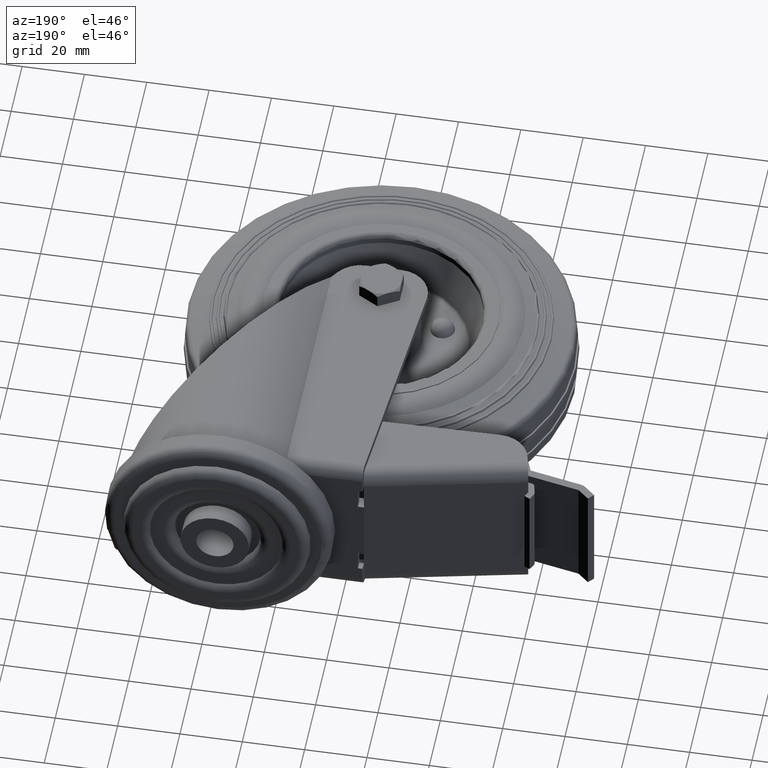
[diagram: clean part render]
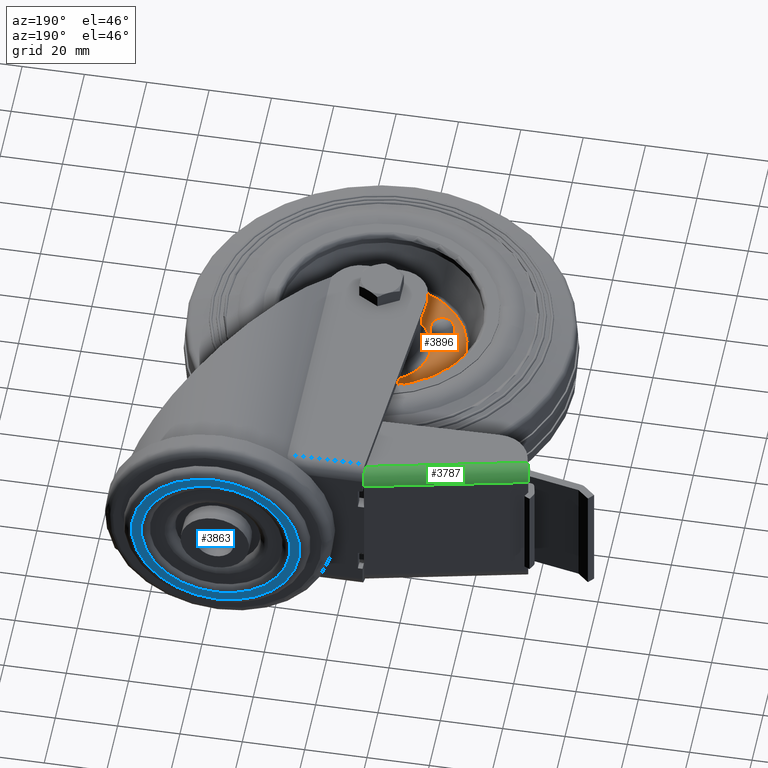
[diagram: same view with three faces highlighted in distinct colors, each labeled with its STEP entity id]
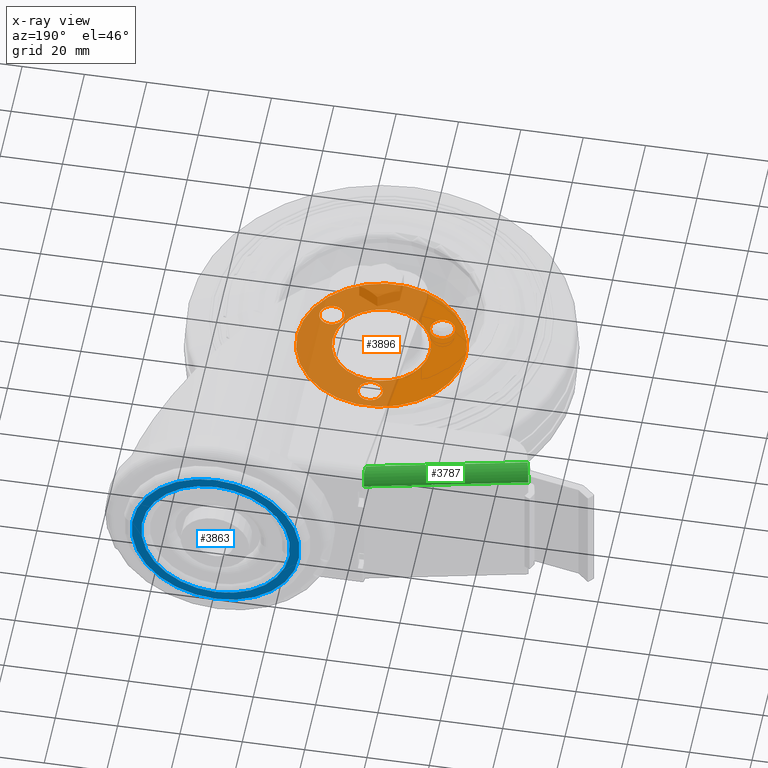
[diagram: x-ray of the same camera — body ghosted, the three highlighted faces saturated]
A machine part, auxiliary view with three faces highlighted in distinct colors.
The next image is the same camera in x-ray (body ghosted, the three faces saturated) — at least one of them is partly hidden behind the body in this view.
Their STEP definitions:

[orange] entity #3896 — the highlighted planar face has unit normal (0, 0, 1).
#379=FACE_BOUND('',#1009,.T.);
#380=FACE_BOUND('',#1010,.T.);
#381=FACE_BOUND('',#1011,.T.);
#382=FACE_BOUND('',#1012,.T.);
#497=CIRCLE('',#4441,27.0499809046163);
#498=CIRCLE('',#4442,3.97994974842648);
#499=CIRCLE('',#4443,3.97994974842648);
#500=CIRCLE('',#4444,3.97994974842648);
#501=CIRCLE('',#4445,15.7);
#761=FACE_OUTER_BOUND('',#1008,.T.);
#1008=EDGE_LOOP('',(#3360));
#1009=EDGE_LOOP('',(#3361));
#1010=EDGE_LOOP('',(#3362));
#1011=EDGE_LOOP('',(#3363));
#1012=EDGE_LOOP('',(#3364));
#1925=VERTEX_POINT('',#6758);
#1926=VERTEX_POINT('',#6760);
#1927=VERTEX_POINT('',#6762);
#1928=VERTEX_POINT('',#6764);
#1929=VERTEX_POINT('',#6766);
#2416=EDGE_CURVE('',#1925,#1925,#497,.T.);
#2417=EDGE_CURVE('',#1926,#1926,#498,.T.);
#2418=EDGE_CURVE('',#1927,#1927,#499,.T.);
#2419=EDGE_CURVE('',#1928,#1928,#500,.T.);
#2420=EDGE_CURVE('',#1929,#1929,#501,.T.);
#3360=ORIENTED_EDGE('',*,*,#2416,.T.);
#3361=ORIENTED_EDGE('',*,*,#2417,.F.);
#3362=ORIENTED_EDGE('',*,*,#2418,.F.);
#3363=ORIENTED_EDGE('',*,*,#2419,.F.);
#3364=ORIENTED_EDGE('',*,*,#2420,.F.);
#3719=PLANE('',#4440);
#3896=ADVANCED_FACE('',(#761,#379,#380,#381,#382),#3719,.T.);
#4440=AXIS2_PLACEMENT_3D('',#6757,#5430,#5431);
#4441=AXIS2_PLACEMENT_3D('',#6759,#5432,#5433);
#4442=AXIS2_PLACEMENT_3D('',#6761,#5434,#5435);
#4443=AXIS2_PLACEMENT_3D('',#6763,#5436,#5437);
#4444=AXIS2_PLACEMENT_3D('',#6765,#5438,#5439);
#4445=AXIS2_PLACEMENT_3D('',#6767,#5440,#5441);
#5430=DIRECTION('center_axis',(1.,0.,0.));
#5431=DIRECTION('ref_axis',(0.,0.,-1.));
#5432=DIRECTION('center_axis',(1.,0.,0.));
#5433=DIRECTION('ref_axis',(0.,0.,-1.));
#5434=DIRECTION('center_axis',(1.,0.,0.));
#5435=DIRECTION('ref_axis',(0.,0.,-1.));
#5436=DIRECTION('center_axis',(1.,0.,0.));
#5437=DIRECTION('ref_axis',(0.,0.,-1.));
#5438=DIRECTION('center_axis',(1.,0.,0.));
#5439=DIRECTION('ref_axis',(0.,0.,-1.));
#5440=DIRECTION('center_axis',(1.,0.,0.));
#5441=DIRECTION('ref_axis',(0.,0.,-1.));
#6757=CARTESIAN_POINT('Origin',(23.2,15.7,0.));
#6758=CARTESIAN_POINT('',(23.2,-3.31266725318354E-15,27.0499809046163));
#6759=CARTESIAN_POINT('Origin',(23.2,0.,0.));
#6760=CARTESIAN_POINT('',(23.2,16.5200502515735,-4.8740327201778E-16));
#6761=CARTESIAN_POINT('Origin',(23.2,20.5,0.));
#6762=CARTESIAN_POINT('',(23.2,-8.26002512578676,-14.3067831896582));
#6763=CARTESIAN_POINT('Origin',(23.2,-10.25,-17.753520777581));
#6764=CARTESIAN_POINT('',(23.2,-8.26002512578676,14.3067831896582));
#6765=CARTESIAN_POINT('Origin',(23.2,-10.25,17.753520777581));
#6766=CARTESIAN_POINT('',(23.2,-1.92269547466134E-15,15.7));
#6767=CARTESIAN_POINT('Origin',(23.2,0.,0.));

[blue] entity #3863 — the highlighted planar face has unit normal (0, -1, 0).
#369=FACE_BOUND('',#966,.T.);
#472=CIRCLE('',#4376,27.);
#474=CIRCLE('',#4379,23.8499999999999);
#728=FACE_OUTER_BOUND('',#965,.T.);
#965=EDGE_LOOP('',(#3208));
#966=EDGE_LOOP('',(#3209));
#1890=VERTEX_POINT('',#6603);
#1891=VERTEX_POINT('',#6607);
#2354=EDGE_CURVE('',#1890,#1890,#472,.T.);
#2356=EDGE_CURVE('',#1891,#1891,#474,.T.);
#3208=ORIENTED_EDGE('',*,*,#2354,.T.);
#3209=ORIENTED_EDGE('',*,*,#2356,.F.);
#3701=PLANE('',#4378);
#3863=ADVANCED_FACE('',(#728,#369),#3701,.F.);
#4376=AXIS2_PLACEMENT_3D('',#6604,#5271,#5272);
#4378=AXIS2_PLACEMENT_3D('',#6606,#5275,#5276);
#4379=AXIS2_PLACEMENT_3D('',#6608,#5277,#5278);
#5271=DIRECTION('center_axis',(0.,1.,0.));
#5272=DIRECTION('ref_axis',(0.,0.,1.));
#5275=DIRECTION('center_axis',(0.,-1.,0.));
#5276=DIRECTION('ref_axis',(0.,0.,-1.));
#5277=DIRECTION('center_axis',(0.,1.,0.));
#5278=DIRECTION('ref_axis',(0.,0.,1.));
#6603=CARTESIAN_POINT('',(37.,92.,-27.));
#6604=CARTESIAN_POINT('Origin',(37.,92.,0.));
#6606=CARTESIAN_POINT('Origin',(10.,92.,0.));
#6607=CARTESIAN_POINT('',(37.,92.,-23.8499999999999));
#6608=CARTESIAN_POINT('Origin',(37.,92.,0.));

[green] entity #3787 — the highlighted cylindrical surface (edge-blend (fillet) strip) has radius 4.5 mm, axis along (-0.9781, -0.2079, 0).
#67=ELLIPSE('',#4259,4.70561290419216,4.49999999999999);
#317=CYLINDRICAL_SURFACE('',#4258,4.49999999999999);
#439=CIRCLE('',#4260,4.49999999999999);
#440=CIRCLE('',#4261,4.49999999999999);
#652=FACE_OUTER_BOUND('',#884,.T.);
#884=EDGE_LOOP('',(#2795,#2796,#2797,#2798,#2799));
#1159=LINE('',#6165,#1444);
#1170=LINE('',#6198,#1455);
#1444=VECTOR('',#4864,1000.);
#1455=VECTOR('',#4891,1000.);
#1758=VERTEX_POINT('',#6162);
#1759=VERTEX_POINT('',#6164);
#1771=VERTEX_POINT('',#6193);
#1772=VERTEX_POINT('',#6195);
#1773=VERTEX_POINT('',#6197);
#2147=EDGE_CURVE('',#1758,#1759,#1159,.T.);
#2161=EDGE_CURVE('',#1758,#1771,#67,.T.);
#2162=EDGE_CURVE('',#1771,#1772,#439,.T.);
#2163=EDGE_CURVE('',#1772,#1773,#1170,.T.);
#2164=EDGE_CURVE('',#1773,#1759,#440,.T.);
#2795=ORIENTED_EDGE('',*,*,#2161,.T.);
#2796=ORIENTED_EDGE('',*,*,#2162,.T.);
#2797=ORIENTED_EDGE('',*,*,#2163,.T.);
#2798=ORIENTED_EDGE('',*,*,#2164,.T.);
#2799=ORIENTED_EDGE('',*,*,#2147,.F.);
#3787=ADVANCED_FACE('',(#652),#317,.T.);
#4258=AXIS2_PLACEMENT_3D('',#6192,#4885,#4886);
#4259=AXIS2_PLACEMENT_3D('',#6194,#4887,#4888);
#4260=AXIS2_PLACEMENT_3D('',#6196,#4889,#4890);
#4261=AXIS2_PLACEMENT_3D('',#6199,#4892,#4893);
#4864=DIRECTION('',(-1.,0.,0.));
#4885=DIRECTION('center_axis',(-1.,0.,0.));
#4886=DIRECTION('ref_axis',(0.,0.,1.));
#4887=DIRECTION('center_axis',(-0.956304755963036,0.292371704722737,0.));
#4888=DIRECTION('ref_axis',(-0.292371704722737,-0.956304755963035,0.));
#4889=DIRECTION('center_axis',(-1.,0.,0.));
#4890=DIRECTION('ref_axis',(0.,0.,1.));
#4891=DIRECTION('',(-1.,0.,0.));
#4892=DIRECTION('center_axis',(1.,0.,0.));
#4893=DIRECTION('ref_axis',(0.,0.,-1.));
#6162=CARTESIAN_POINT('',(51.1456732963533,-4.5,24.5));
#6164=CARTESIAN_POINT('',(0.,-4.5,24.5));
#6165=CARTESIAN_POINT('',(58.,-4.5,24.5));
#6192=CARTESIAN_POINT('Origin',(58.,-4.49999999999999,20.));
#6193=CARTESIAN_POINT('',(51.91,-2.,23.7416573867739));
#6194=CARTESIAN_POINT('Origin',(51.1456732963533,-4.49999999999999,20.));
#6195=CARTESIAN_POINT('',(51.91,0.,20.));
#6196=CARTESIAN_POINT('Origin',(51.91,-4.49999999999999,20.));
#6197=CARTESIAN_POINT('',(0.,0.,20.));
#6198=CARTESIAN_POINT('',(58.,0.,20.));
#6199=CARTESIAN_POINT('Origin',(0.,-4.49999999999999,20.));